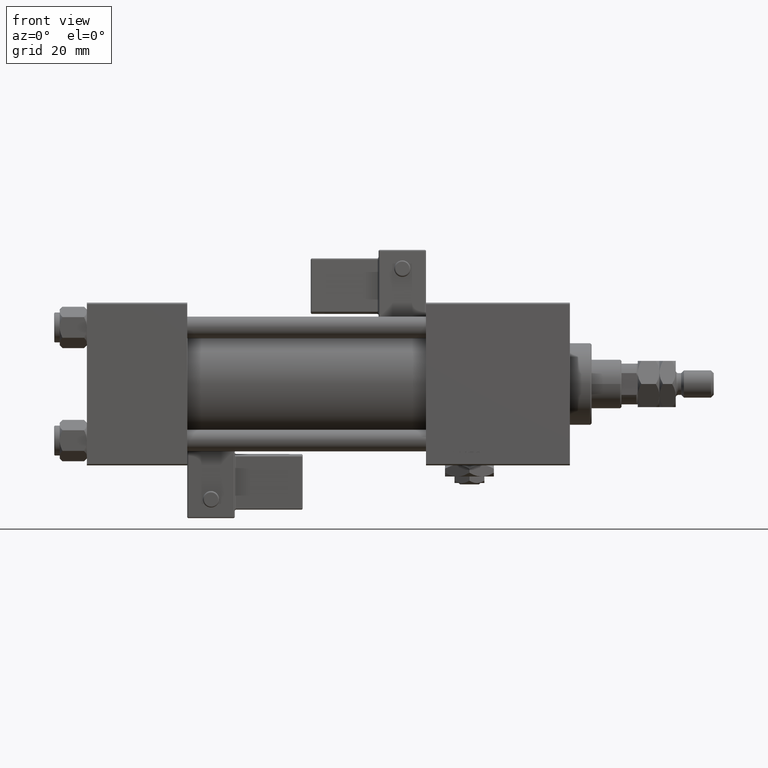
[diagram: clean part render]
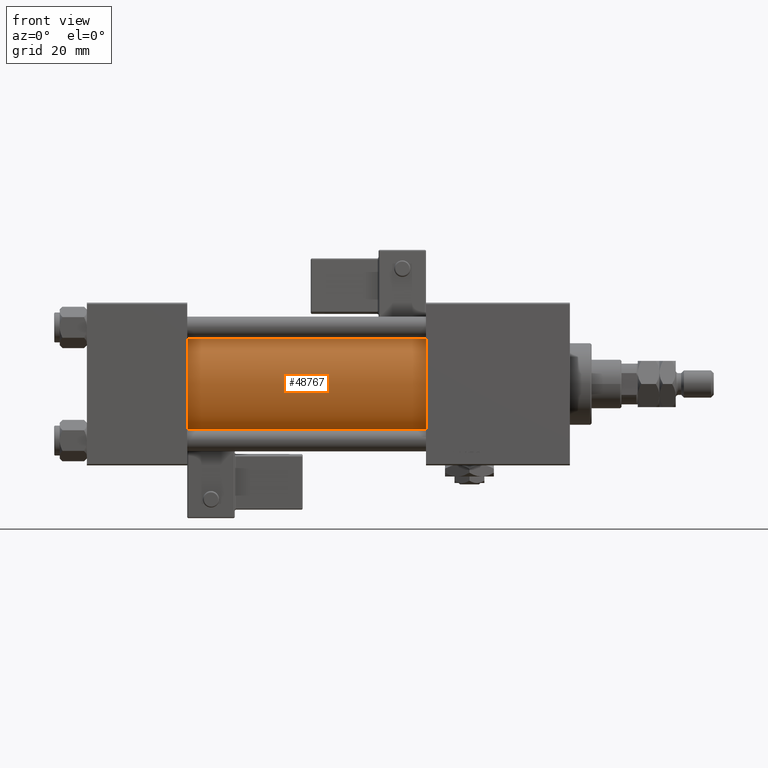
[diagram: same view with one face highlighted and labeled with its STEP entity id]
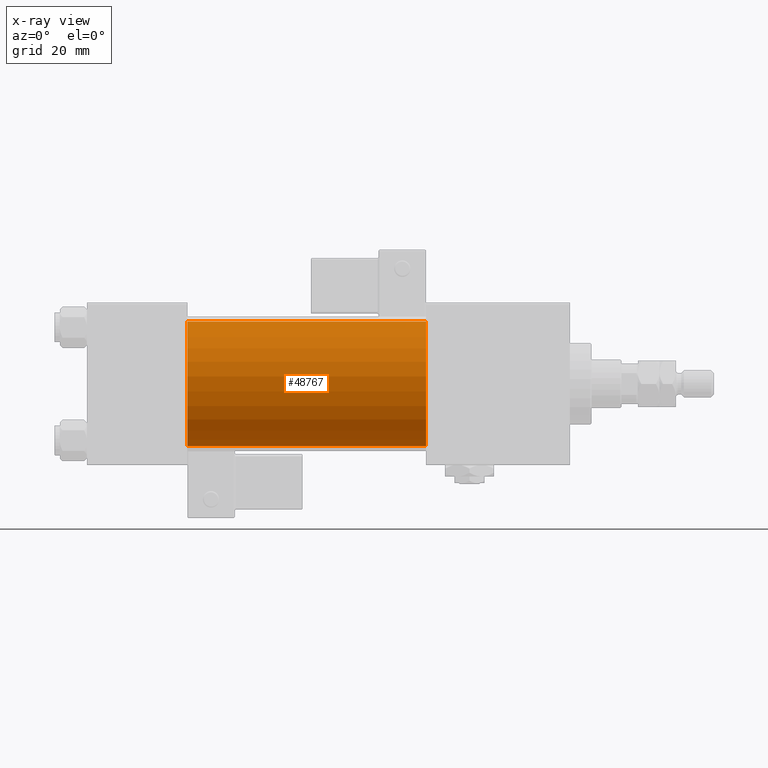
[diagram: x-ray of the same camera — body ghosted, the highlighted face saturated]
A machine part, front view. The second image highlights one B-rep face of the part: STEP entity #48767.
The next image is the same camera in x-ray: the body ghosted, the highlighted face saturated — about 0% of this face is hidden behind the body in this view.
In plain terms, the highlighted cylindrical surface (partial cylindrical patch) has radius 23 mm, axis along (-1, -0, -0).
Its self-contained STEP definition (entity closure, byte-faithful):
#348 = EDGE_LOOP ( 'NONE', ( #54181, #33520, #17521, #37046 ) ) ;
#1669 = CARTESIAN_POINT ( 'NONE',  ( 37.00000000000000711, 2.146024240737016609E-16, -23.00000000000000000 ) ) ;
#2839 = AXIS2_PLACEMENT_3D ( 'NONE', #35941, #27477, #15086 ) ;
#4097 = CARTESIAN_POINT ( 'NONE',  ( 125.0000000000000000, -2.602085213965210642E-15, 0.000000000000000000 ) ) ;
#4806 = CARTESIAN_POINT ( 'NONE',  ( 125.0000000000000000, 2.146024240737016609E-16, -23.00000000000000000 ) ) ;
#9012 = LINE ( 'NONE', #4806, #42423 ) ;
#9132 = DIRECTION ( 'NONE',  ( 0.000000000000000000, 0.000000000000000000, -1.000000000000000000 ) ) ;
#10522 = EDGE_CURVE ( 'NONE', #36992, #39288, #18871, .T. ) ;
#11918 = DIRECTION ( 'NONE',  ( 0.000000000000000000, 0.000000000000000000, 1.000000000000000000 ) ) ;
#14994 = VECTOR ( 'NONE', #37179, 1000.000000000000000 ) ;
#15086 = DIRECTION ( 'NONE',  ( 0.000000000000000000, 0.000000000000000000, 1.000000000000000000 ) ) ;
#16420 = VERTEX_POINT ( 'NONE', #1669 ) ;
#16629 = CIRCLE ( 'NONE', #53493, 23.00000000000000000 ) ;
#17521 = ORIENTED_EDGE ( 'NONE', *, *, #10522, .T. ) ;
#18871 = LINE ( 'NONE', #19146, #14994 ) ;
#19021 = CIRCLE ( 'NONE', #2839, 23.00000000000000000 ) ;
#19146 = CARTESIAN_POINT ( 'NONE',  ( 125.0000000000000000, -2.602085213965210642E-15, 23.00000000000000000 ) ) ;
#20652 = FACE_OUTER_BOUND ( 'NONE', #348, .T. ) ;
#21118 = CARTESIAN_POINT ( 'NONE',  ( 125.0000000000000000, 2.146024240737016609E-16, -23.00000000000000000 ) ) ;
#23268 = VERTEX_POINT ( 'NONE', #21118 ) ;
#26415 = EDGE_CURVE ( 'NONE', #23268, #16420, #9012, .T. ) ;
#27399 = CARTESIAN_POINT ( 'NONE',  ( 37.00000000000000711, -2.602085213965210642E-15, 23.00000000000000000 ) ) ;
#27477 = DIRECTION ( 'NONE',  ( 1.000000000000000000, -0.000000000000000000, 0.000000000000000000 ) ) ;
#28544 = CYLINDRICAL_SURFACE ( 'NONE', #39573, 23.00000000000000000 ) ;
#33520 = ORIENTED_EDGE ( 'NONE', *, *, #41361, .F. ) ;
#35941 = CARTESIAN_POINT ( 'NONE',  ( 37.00000000000000711, -2.602085213965210642E-15, 0.000000000000000000 ) ) ;
#36992 = VERTEX_POINT ( 'NONE', #54030 ) ;
#37008 = DIRECTION ( 'NONE',  ( -1.000000000000000000, -0.000000000000000000, -0.000000000000000000 ) ) ;
#37046 = ORIENTED_EDGE ( 'NONE', *, *, #55351, .T. ) ;
#37179 = DIRECTION ( 'NONE',  ( -1.000000000000000000, -0.000000000000000000, -0.000000000000000000 ) ) ;
#37776 = DIRECTION ( 'NONE',  ( -1.000000000000000000, -0.000000000000000000, -0.000000000000000000 ) ) ;
#39288 = VERTEX_POINT ( 'NONE', #27399 ) ;
#39573 = AXIS2_PLACEMENT_3D ( 'NONE', #51064, #37008, #11918 ) ;
#41361 = EDGE_CURVE ( 'NONE', #36992, #23268, #16629, .T. ) ;
#42423 = VECTOR ( 'NONE', #37776, 1000.000000000000000 ) ;
#43509 = DIRECTION ( 'NONE',  ( 1.000000000000000000, 0.000000000000000000, 0.000000000000000000 ) ) ;
#48767 = ADVANCED_FACE ( 'NONE', ( #20652 ), #28544, .T. ) ;
#51064 = CARTESIAN_POINT ( 'NONE',  ( 125.0000000000000000, -2.602085213965210642E-15, 0.000000000000000000 ) ) ;
#53493 = AXIS2_PLACEMENT_3D ( 'NONE', #4097, #43509, #9132 ) ;
#54030 = CARTESIAN_POINT ( 'NONE',  ( 125.0000000000000000, -2.602085213965210642E-15, 23.00000000000000000 ) ) ;
#54181 = ORIENTED_EDGE ( 'NONE', *, *, #26415, .F. ) ;
#55351 = EDGE_CURVE ( 'NONE', #39288, #16420, #19021, .T. ) ;